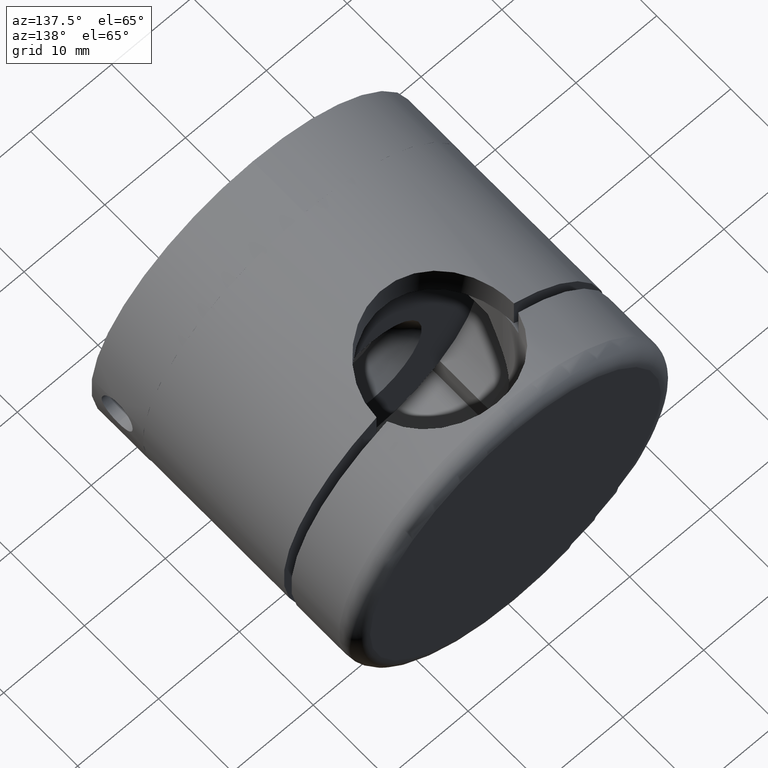
[diagram: clean part render]
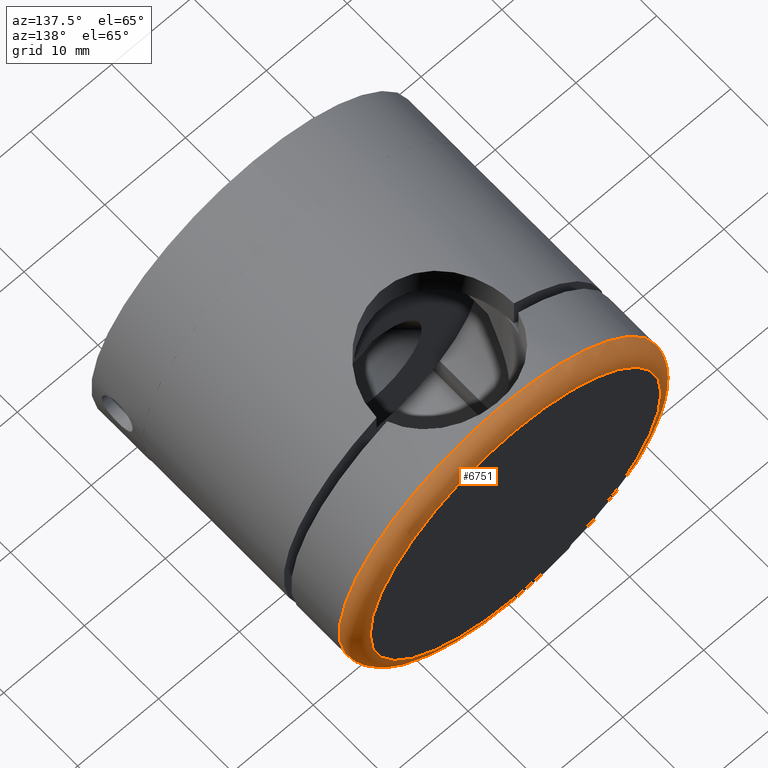
[diagram: same view with one face highlighted and labeled with its STEP entity id]
A machine part, auxiliary view. The second image highlights one B-rep face of the part: STEP entity #6751.
In plain terms, the highlighted toroidal blend (fillet) surface has major radius 18 mm and minor (blend) radius 2 mm.
Its self-contained STEP definition (entity closure, byte-faithful):
#508 = TOROIDAL_SURFACE ( 'NONE', #9941, 18.00000000000000400, 2.000000000000000000 ) ;
#981 = VERTEX_POINT ( 'NONE', #10437 ) ;
#1296 = AXIS2_PLACEMENT_3D ( 'NONE', #11553, #8647, #10186 ) ;
#1746 = EDGE_LOOP ( 'NONE', ( #11171 ) ) ;
#2429 = CIRCLE ( 'NONE', #10201, 18.00000000000000400 ) ;
#3243 = FACE_OUTER_BOUND ( 'NONE', #8885, .T. ) ;
#4741 = CIRCLE ( 'NONE', #1296, 20.00000000000000000 ) ;
#4743 = DIRECTION ( 'NONE',  ( 0.0000000000000000000, 0.0000000000000000000, -1.000000000000000000 ) ) ;
#5949 = CARTESIAN_POINT ( 'NONE',  ( 0.0000000000000000000, 1.500000000000000000, 0.0000000000000000000 ) ) ;
#6168 = DIRECTION ( 'NONE',  ( 0.0000000000000000000, 0.0000000000000000000, -1.000000000000000000 ) ) ;
#6751 = ADVANCED_FACE ( 'NONE', ( #3243, #15234 ), #508, .T. ) ;
#6858 = VERTEX_POINT ( 'NONE', #16944 ) ;
#7209 = ORIENTED_EDGE ( 'NONE', *, *, #14487, .F. ) ;
#8647 = DIRECTION ( 'NONE',  ( -0.0000000000000000000, 1.000000000000000000, -0.0000000000000000000 ) ) ;
#8832 = DIRECTION ( 'NONE',  ( 0.0000000000000000000, -1.000000000000000000, 0.0000000000000000000 ) ) ;
#8885 = EDGE_LOOP ( 'NONE', ( #7209 ) ) ;
#9941 = AXIS2_PLACEMENT_3D ( 'NONE', #12651, #8832, #6168 ) ;
#10141 = DIRECTION ( 'NONE',  ( 0.0000000000000000000, -1.000000000000000000, 0.0000000000000000000 ) ) ;
#10186 = DIRECTION ( 'NONE',  ( 0.0000000000000000000, 0.0000000000000000000, -1.000000000000000000 ) ) ;
#10201 = AXIS2_PLACEMENT_3D ( 'NONE', #5949, #10141, #4743 ) ;
#10437 = CARTESIAN_POINT ( 'NONE',  ( 0.0000000000000000000, 3.499999999999999600, -20.00000000000000000 ) ) ;
#11171 = ORIENTED_EDGE ( 'NONE', *, *, #11921, .F. ) ;
#11553 = CARTESIAN_POINT ( 'NONE',  ( 0.0000000000000000000, 3.499999999999999600, 0.0000000000000000000 ) ) ;
#11921 = EDGE_CURVE ( 'NONE', #6858, #6858, #2429, .T. ) ;
#12651 = CARTESIAN_POINT ( 'NONE',  ( 0.0000000000000000000, 3.499999999999999600, 0.0000000000000000000 ) ) ;
#14487 = EDGE_CURVE ( 'NONE', #981, #981, #4741, .T. ) ;
#15234 = FACE_OUTER_BOUND ( 'NONE', #1746, .T. ) ;
#16944 = CARTESIAN_POINT ( 'NONE',  ( 0.0000000000000000000, 1.500000000000000000, -18.00000000000000400 ) ) ;